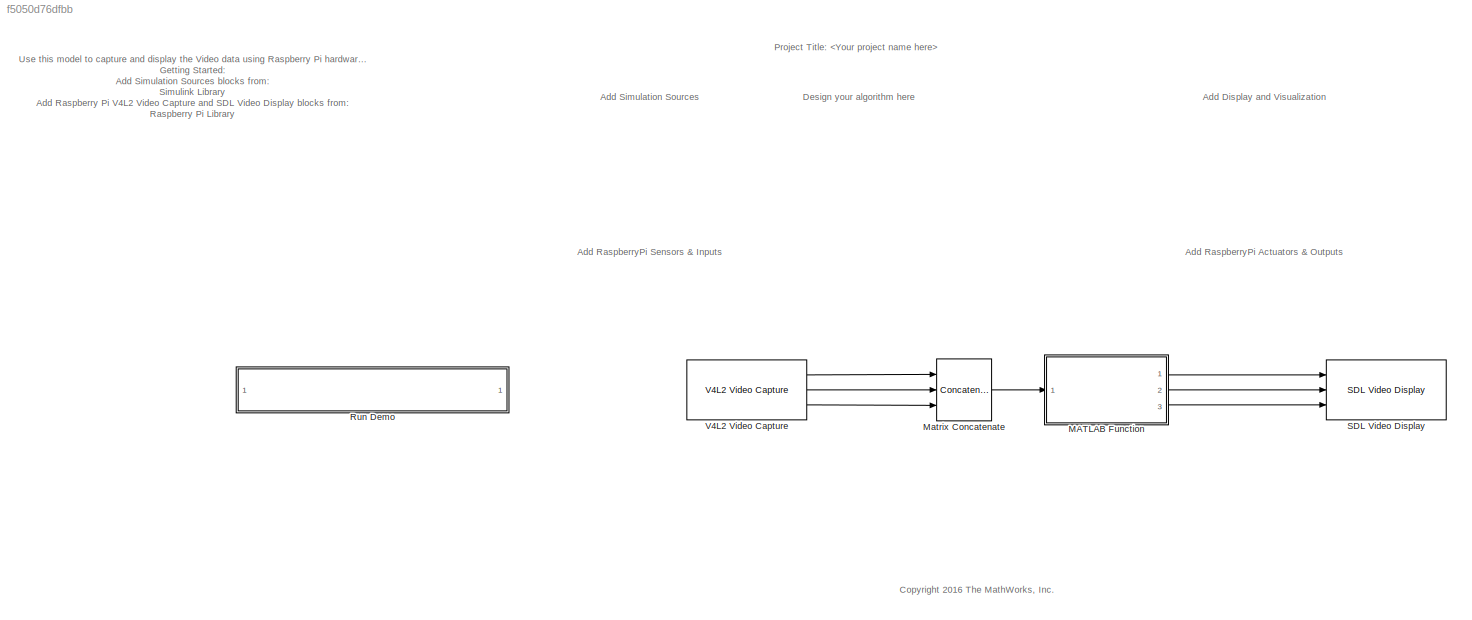
MODEL slx_f5050d76dfbb
KIND model
CONFIG AbsTol = auto
CONFIG EnableMultiTasking = on
CONFIG FixedStep = auto
CONFIG MaxStep = auto
CONFIG MinStep = auto
CONFIG RelTol = 1e-3
CONFIG SampleTimeConstraint = Unconstrained
CONFIG Solver = ode45
CONFIG SolverName = ode45
CONFIG StartTime = 0.0
CONFIG StopTime = 10.0
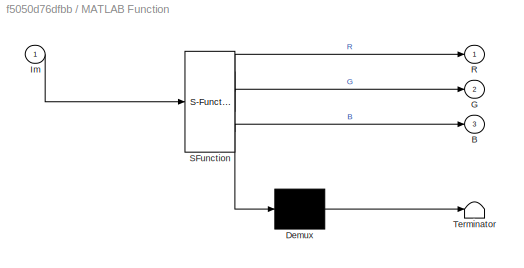
BLOCK [SubSystem] MATLAB Function
  ErrorFcn = Stateflow.Translate.translate
  PermitHierarchicalResolution = ExplicitOnly
  Ports = [1, 3]
  RequestExecContextInheritance = off
  SFBlockType = MATLAB Function
  TreatAsAtomicUnit = on
BLOCK [Demux] MATLAB Function/ Demux 
  Outputs = 1
  Ports = [1, 1]
BLOCK [S-Function] MATLAB Function/ SFunction 
  EnableBusSupport = on
  FunctionName = sf_sfun
  PortCounts = [1 4]
  Ports = [1, 4]
  SFcnIsStateOwnerBlock = off
  SFunctionDeploymentMode = off
  Tag = Stateflow S-Function CamTest_D02 2
BLOCK [Terminator] MATLAB Function/ Terminator 
BLOCK [Outport] MATLAB Function/B
  IconDisplay = Port number
  Port = 3
BLOCK [Outport] MATLAB Function/G
  IconDisplay = Port number
  Port = 2
BLOCK [Inport] MATLAB Function/Im
  IconDisplay = Port number
BLOCK [Outport] MATLAB Function/R
  IconDisplay = Port number
BLOCK [Concatenate] Matrix Concatenate
  ConcatenateDimension = 3
  Mode = Multidimensional array
  NumInputs = 3
  Ports = [3, 1]
BLOCK [SubSystem] Run Demo
  Description = Controls host-side RTDX processing.
  Ports = []
  RequestExecContextInheritance = off
  ShowPortLabels = none
  UserDataPersistent = on
BLOCK [Reference] SDL Video Display  REF=embdlinuxlib/SDL Video Display
  Ports = [3]
  SourceBlock = embdlinuxlib/SDL Video Display
  SourceProductBaseCode = RASPPI
  SourceProductName = Simulink Support Package for Raspberry Pi Hardware
  SourceType = SDL Video Display
BLOCK [Reference] V4L2 Video Capture  REF=embdlinuxlib/V4L2 Video Capture
  Ports = [0, 3]
  SourceBlock = embdlinuxlib/V4L2 Video Capture
  SourceProductBaseCode = RASPPI
  SourceProductName = Simulink Support Package for Raspberry Pi Hardware
  SourceType = V4L2 Video Capture
ANNOTATION (root): Use this model to capture and display the Video data using Raspberry Pi hardware. Getting Started: Add Simulation Sources blocks from: Simulink Library Add Raspberry Pi V4L2 Video Capture and SDL Video Display blocks from: Raspberry Pi Library Configure Raspberry Pi Hardware: Open Model Configuration Parameters dialog Under the Hardware Implementation option, select the Raspberry Pi hardware from ...<+381ch>
ANNOTATION (root): Add Display and Visualization
ANNOTATION (root): Add RaspberryPi Actuators & Outputs
ANNOTATION (root): Add RaspberryPi Sensors & Inputs
ANNOTATION (root): Add Simulation Sources
ANNOTATION (root): <copyright redacted>
ANNOTATION (root): Design your algorithm here
ANNOTATION (root): Project Title:
LINE MATLAB Function:1 -> SDL Video Display:1
LINE MATLAB Function:2 -> SDL Video Display:2
LINE MATLAB Function:3 -> SDL Video Display:3
LINE Matrix Concatenate:1 -> MATLAB Function:1
LINE V4L2 Video Capture:1 -> Matrix Concatenate:1
LINE V4L2 Video Capture:2 -> Matrix Concatenate:2
LINE V4L2 Video Capture:3 -> Matrix Concatenate:3
CHART MATLAB Function states=1 transitions=1
  STATE_LABEL 'eML_blk_kernel()'
  STATE_LABEL 'SCRIPT:\nfunction [R,G,B] = fcn(Im)\n[m,n,~]=size(Im);\nmask=zeros(m,n);\nIm_HSV = rgb2hsv(Im);\nR_T=115;%[115 135]\nS_T=55;%[55 65]\nfor i=1:m\n    for j=1:n\n        if Im(i,j,1)>=R_T\n            if Im(i,j,1)>=Im(i,j,2) && Im(i,j,2)>=Im(i,j,3)\n                if Im_HSV(i,j,2)>=(255-Im(i,j,1))*S_T/R_T\n                    mask(i,j)=1;\n                end\n            end\n        end\n    end\nend\nIm1= bsxfun(...<+79ch>'
